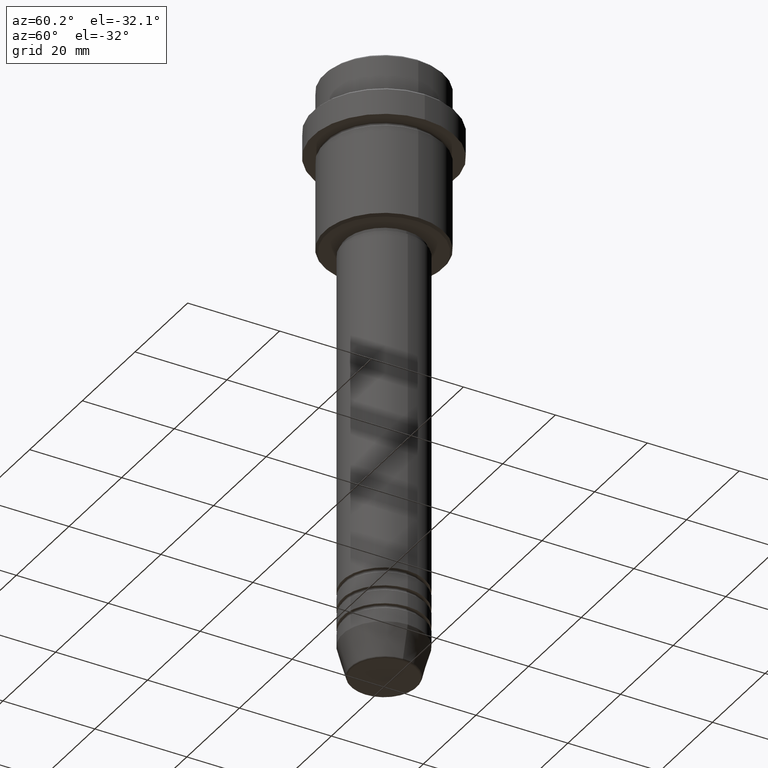
[diagram: clean part render]
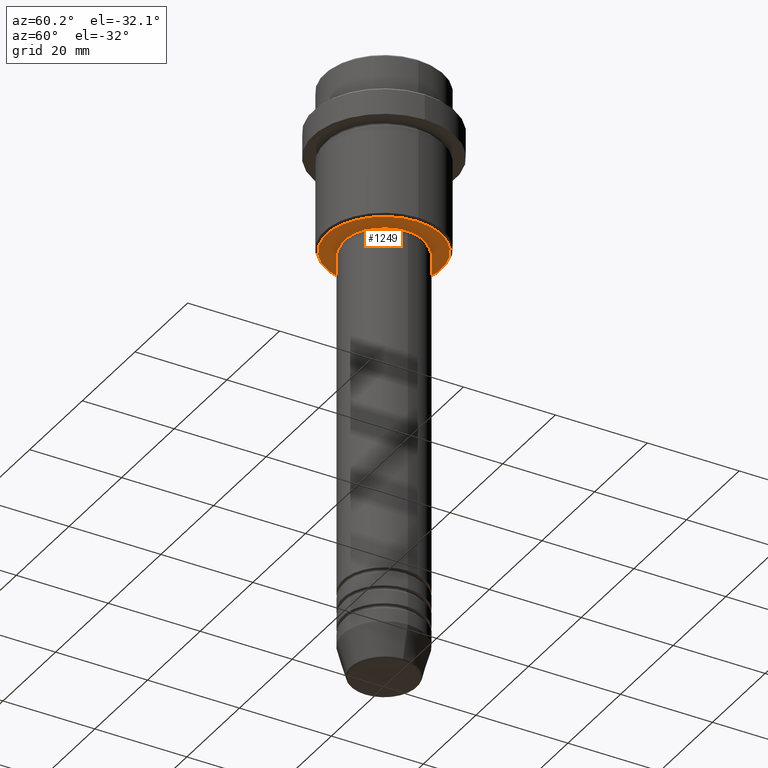
[diagram: same view with one face highlighted and labeled with its STEP entity id]
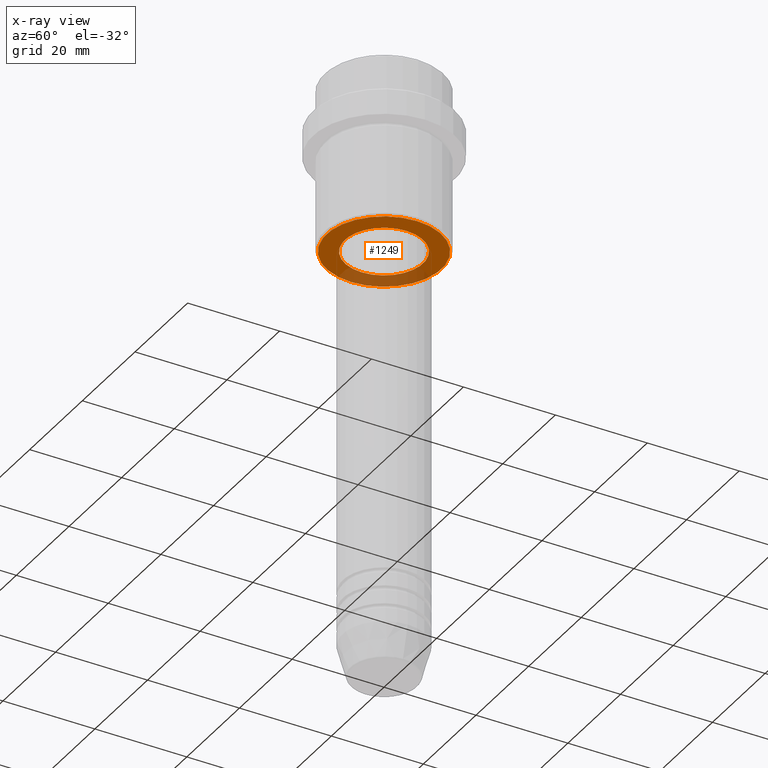
[diagram: x-ray of the same camera — body ghosted, the highlighted face saturated]
A machine part, auxiliary view. The second image highlights one B-rep face of the part: STEP entity #1249.
The next image is the same camera in x-ray: the body ghosted, the highlighted face saturated — about 26% of this face is hidden behind the body in this view.
In plain terms, the highlighted planar face has unit normal (0, 0, -1).
Its self-contained STEP definition (entity closure, byte-faithful):
#38 = AXIS2_PLACEMENT_3D ( 'NONE', #1141, #259, #613 ) ;
#40 = ORIENTED_EDGE ( 'NONE', *, *, #429, .T. ) ;
#93 = DIRECTION ( 'NONE',  ( 0.000000000000000000, 0.000000000000000000, -1.000000000000000000 ) ) ;
#139 = ORIENTED_EDGE ( 'NONE', *, *, #941, .T. ) ;
#156 = DIRECTION ( 'NONE',  ( -1.000000000000000000, 0.000000000000000000, 0.000000000000000000 ) ) ;
#166 = CARTESIAN_POINT ( 'NONE',  ( 8.499999999999994671, 0.000000000000000000, -35.99999999999998579 ) ) ;
#172 = CARTESIAN_POINT ( 'NONE',  ( -12.49999999999999645, 1.561424668912875111E-15, -35.99999999999999289 ) ) ;
#190 = DIRECTION ( 'NONE',  ( -1.000000000000000000, 0.000000000000000000, -0.000000000000000000 ) ) ;
#199 = FACE_OUTER_BOUND ( 'NONE', #387, .T. ) ;
#240 = CARTESIAN_POINT ( 'NONE',  ( 0.000000000000000000, 0.000000000000000000, -35.99999999999999289 ) ) ;
#259 = DIRECTION ( 'NONE',  ( -0.000000000000000000, -0.000000000000000000, 1.000000000000000000 ) ) ;
#274 = VERTEX_POINT ( 'NONE', #1048 ) ;
#387 = EDGE_LOOP ( 'NONE', ( #1072, #139 ) ) ;
#429 = EDGE_CURVE ( 'NONE', #670, #920, #932, .T. ) ;
#450 = CARTESIAN_POINT ( 'NONE',  ( 0.000000000000000000, 0.000000000000000000, -35.99999999999998579 ) ) ;
#460 = DIRECTION ( 'NONE',  ( 0.000000000000000000, 0.000000000000000000, -1.000000000000000000 ) ) ;
#482 = DIRECTION ( 'NONE',  ( -0.000000000000000000, -0.000000000000000000, 1.000000000000000000 ) ) ;
#524 = AXIS2_PLACEMENT_3D ( 'NONE', #568, #1007, #156 ) ;
#548 = AXIS2_PLACEMENT_3D ( 'NONE', #450, #482, #689 ) ;
#568 = CARTESIAN_POINT ( 'NONE',  ( 0.000000000000000000, 0.000000000000000000, -35.99999999999999289 ) ) ;
#579 = EDGE_CURVE ( 'NONE', #274, #1396, #960, .T. ) ;
#613 = DIRECTION ( 'NONE',  ( 1.000000000000000000, 0.000000000000000000, 0.000000000000000000 ) ) ;
#615 = EDGE_LOOP ( 'NONE', ( #40, #1028 ) ) ;
#670 = VERTEX_POINT ( 'NONE', #166 ) ;
#688 = DIRECTION ( 'NONE',  ( -1.000000000000000000, 0.000000000000000000, 0.000000000000000000 ) ) ;
#689 = DIRECTION ( 'NONE',  ( 1.000000000000000000, 0.000000000000000000, 0.000000000000000000 ) ) ;
#754 = CARTESIAN_POINT ( 'NONE',  ( 0.000000000000000000, 13.00000000000000000, -35.99999999999999289 ) ) ;
#802 = CIRCLE ( 'NONE', #965, 12.49999999999999645 ) ;
#812 = AXIS2_PLACEMENT_3D ( 'NONE', #754, #93, #190 ) ;
#867 = PLANE ( 'NONE',  #812 ) ;
#920 = VERTEX_POINT ( 'NONE', #998 ) ;
#932 = CIRCLE ( 'NONE', #548, 8.499999999999994671 ) ;
#941 = EDGE_CURVE ( 'NONE', #1396, #274, #802, .T. ) ;
#960 = CIRCLE ( 'NONE', #524, 12.49999999999999645 ) ;
#965 = AXIS2_PLACEMENT_3D ( 'NONE', #240, #460, #688 ) ;
#998 = CARTESIAN_POINT ( 'NONE',  ( -8.499999999999994671, 1.040949779275249745E-15, -35.99999999999998579 ) ) ;
#1007 = DIRECTION ( 'NONE',  ( 0.000000000000000000, 0.000000000000000000, -1.000000000000000000 ) ) ;
#1028 = ORIENTED_EDGE ( 'NONE', *, *, #1043, .T. ) ;
#1043 = EDGE_CURVE ( 'NONE', #920, #670, #1345, .T. ) ;
#1048 = CARTESIAN_POINT ( 'NONE',  ( 12.49999999999999645, 0.000000000000000000, -35.99999999999999289 ) ) ;
#1072 = ORIENTED_EDGE ( 'NONE', *, *, #579, .T. ) ;
#1141 = CARTESIAN_POINT ( 'NONE',  ( 0.000000000000000000, 0.000000000000000000, -35.99999999999998579 ) ) ;
#1180 = FACE_BOUND ( 'NONE', #615, .T. ) ;
#1249 = ADVANCED_FACE ( 'NONE', ( #199, #1180 ), #867, .T. ) ;
#1345 = CIRCLE ( 'NONE', #38, 8.499999999999994671 ) ;
#1396 = VERTEX_POINT ( 'NONE', #172 ) ;